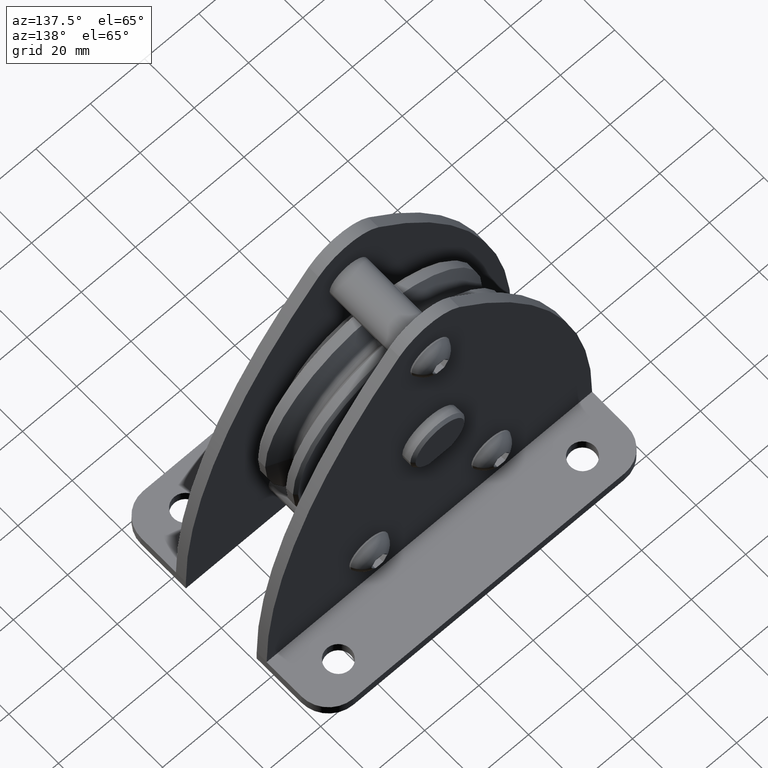
[diagram: clean part render]
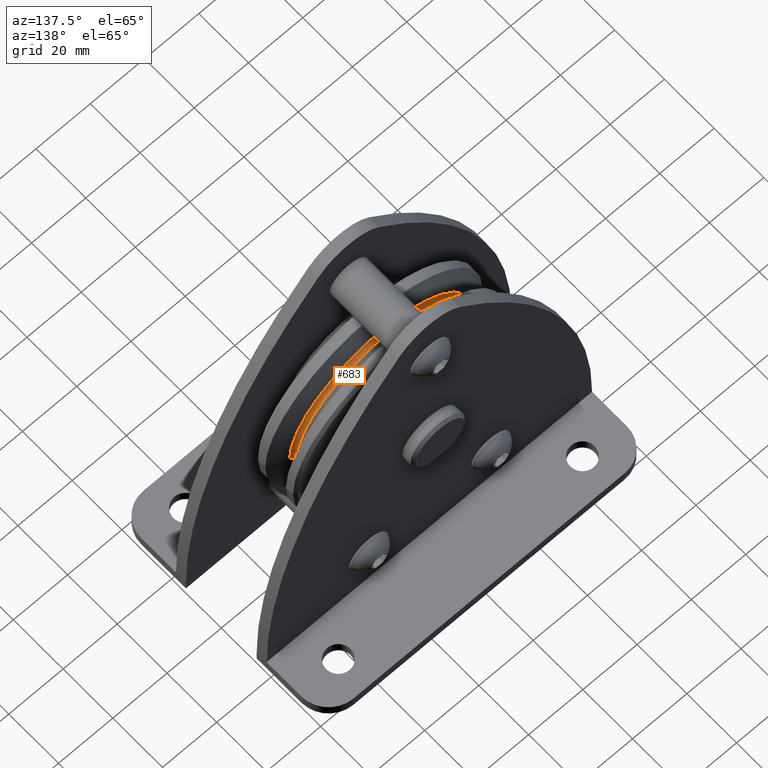
[diagram: same view with one face highlighted and labeled with its STEP entity id]
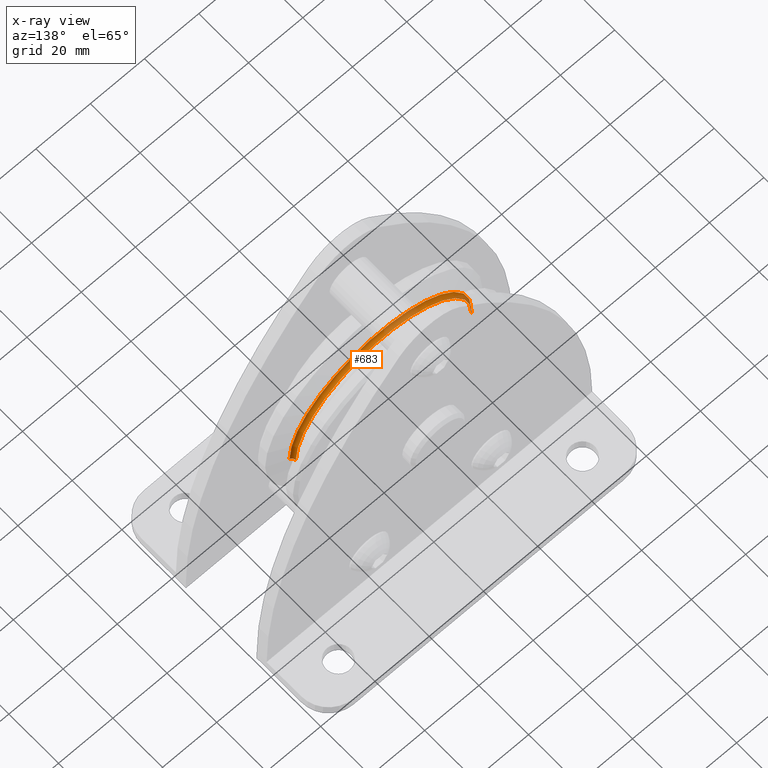
[diagram: x-ray of the same camera — body ghosted, the highlighted face saturated]
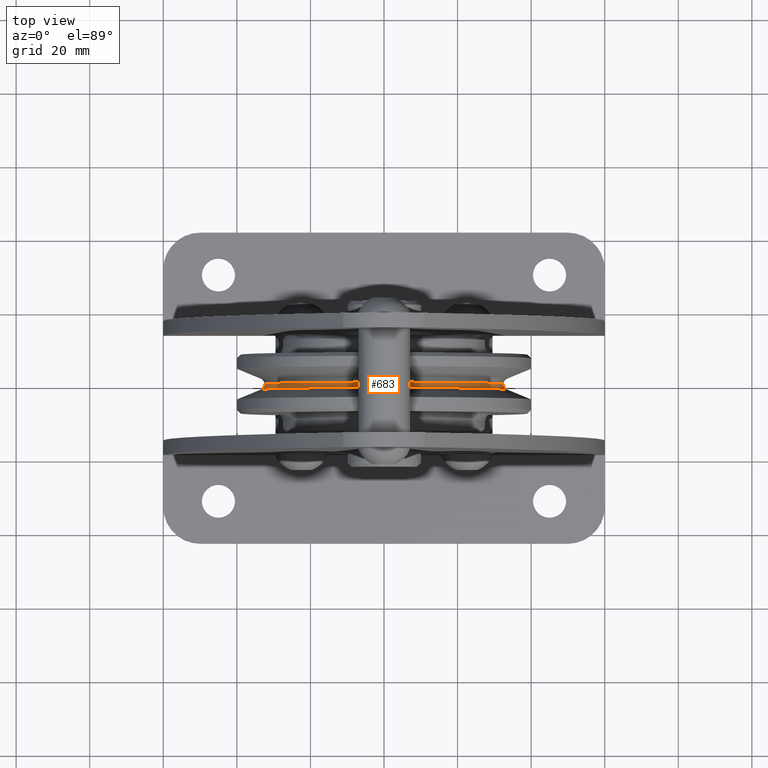
[diagram: same view with one face highlighted and labeled with its STEP entity id]
A machine part, auxiliary view. The second image highlights one B-rep face of the part: STEP entity #683.
The next image is the same camera in x-ray: the body ghosted, the highlighted face saturated — about 22% of this face is hidden behind the body in this view.
A second angle (top view) of the same face is appended — the face is thin or edge-on in the first view.
In plain terms, the highlighted toroidal blend (fillet) surface has major radius 34.1 mm and minor (blend) radius 1.6 mm.
Its self-contained STEP definition (entity closure, byte-faithful):
#683=ADVANCED_FACE('',(#2017),#2018,.F.);
#2017=FACE_OUTER_BOUND('',#4087,.T.);
#2018=TOROIDAL_SURFACE('',#4088,34.099999318,1.59999931799999);
#4087=EDGE_LOOP('',(#6151,#6152,#6153,#6154));
#4088=AXIS2_PLACEMENT_3D('',#6155,#6156,#6157);
#6151=ORIENTED_EDGE('',*,*,#12362,.F.);
#6152=ORIENTED_EDGE('',*,*,#12363,.T.);
#6153=ORIENTED_EDGE('',*,*,#12364,.F.);
#6154=ORIENTED_EDGE('',*,*,#12365,.T.);
#6155=CARTESIAN_POINT('',(0.0,0.0,0.0));
#6156=DIRECTION('',(0.0,-1.0,0.0));
#6157=DIRECTION('',(1.0,0.0,0.0));
#12362=EDGE_CURVE('',#14810,#14811,#14812,.T.);
#12363=EDGE_CURVE('',#14810,#14813,#14814,.T.);
#12364=EDGE_CURVE('',#14815,#14813,#14816,.T.);
#12365=EDGE_CURVE('',#14815,#14811,#14817,.T.);
#14810=VERTEX_POINT('',#18430);
#14811=VERTEX_POINT('',#18431);
#14812=CIRCLE('',#18432,32.5);
#14813=VERTEX_POINT('',#18433);
#14814=CIRCLE('',#18434,1.59999931799999);
#14815=VERTEX_POINT('',#18435);
#14816=CIRCLE('',#18436,33.487707);
#14817=CIRCLE('',#18437,1.59999931799999);
#18430=CARTESIAN_POINT('',(-32.5,-1.95943404342664E-016,3.66843618584337E-015));
#18431=CARTESIAN_POINT('',(32.5,-1.95943404342664E-016,-3.66843618584337E-015));
#18432=AXIS2_PLACEMENT_3D('',#26514,#26515,#26516);
#18433=CARTESIAN_POINT('',(-33.487707,-1.478207,4.10106131883344E-015));
#18434=AXIS2_PLACEMENT_3D('',#26517,#26518,#26519);
#18435=CARTESIAN_POINT('',(33.487707,-1.478207,0.0));
#18436=AXIS2_PLACEMENT_3D('',#26520,#26521,#26522);
#18437=AXIS2_PLACEMENT_3D('',#26523,#26524,#26525);
#26514=CARTESIAN_POINT('',(0.0,-1.95943404342664E-016,0.0));
#26515=DIRECTION('',(-0.0,1.0,0.0));
#26516=DIRECTION('',(0.0,0.0,1.0));
#26517=CARTESIAN_POINT('',(-34.099999318,0.0,4.17604550157156E-015));
#26518=DIRECTION('',(-1.22464679914735E-016,0.0,-1.0));
#26519=DIRECTION('',(-1.0,0.0,1.22464679914735E-016));
#26520=CARTESIAN_POINT('',(0.0,-1.478207,0.0));
#26521=DIRECTION('',(0.0,-1.0,0.0));
#26522=DIRECTION('',(1.0,0.0,0.0));
#26523=CARTESIAN_POINT('',(34.099999318,0.0,-4.17604550157156E-015));
#26524=DIRECTION('',(-1.22464679914735E-016,-0.0,-1.0));
#26525=DIRECTION('',(1.0,0.0,-1.22464679914735E-016));